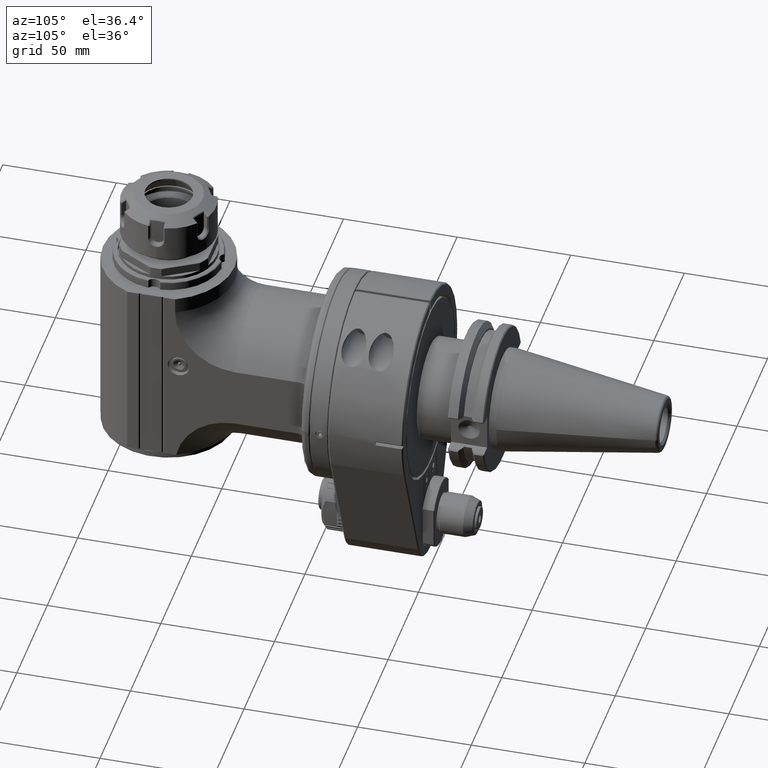
[diagram: clean part render]
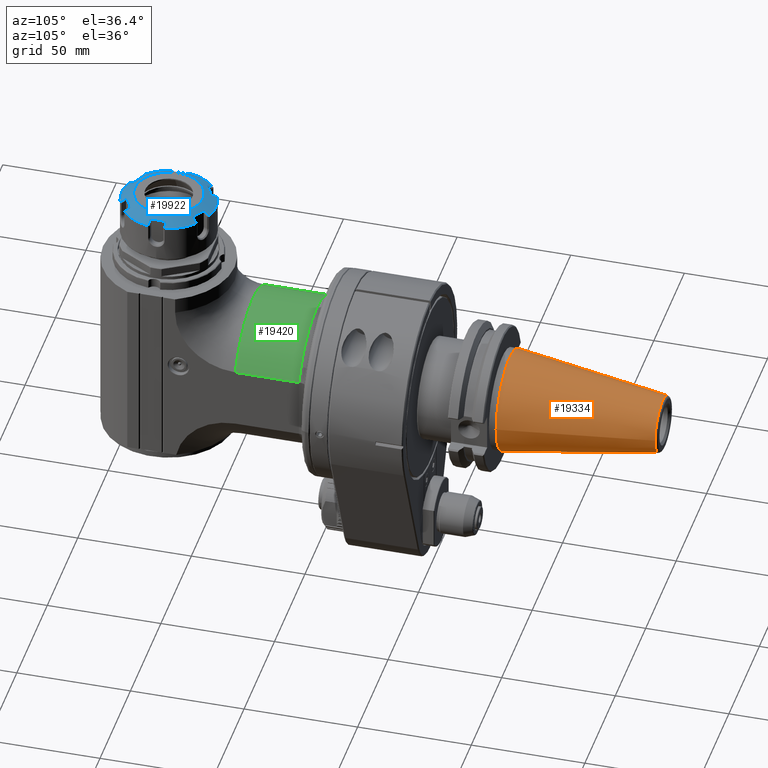
[diagram: same view with three faces highlighted in distinct colors, each labeled with its STEP entity id]
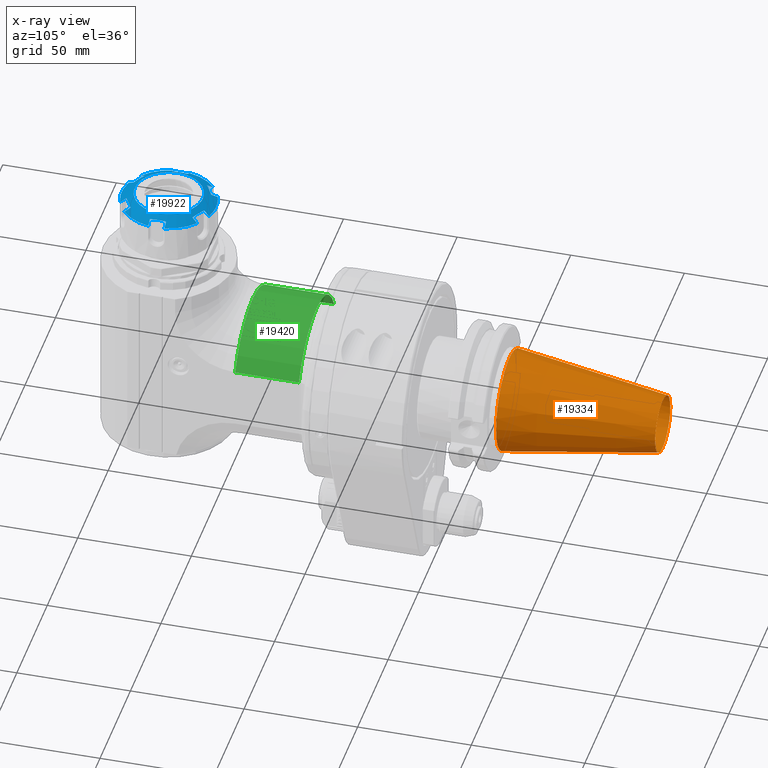
[diagram: x-ray of the same camera — body ghosted, the three highlighted faces saturated]
A machine part, auxiliary view with three faces highlighted in distinct colors.
The next image is the same camera in x-ray (body ghosted, the three faces saturated) — at least one of them is partly hidden behind the body in this view.
Their STEP definitions:

[orange] entity #19334 — the highlighted conical surface has half-angle 8.3 deg.
#633=CONICAL_SURFACE('',#20845,17.31065452764,0.144862327915529);
#1058=CIRCLE('',#20843,22.225);
#1059=CIRCLE('',#20844,22.225);
#1060=CIRCLE('',#20846,12.39630905528);
#1061=CIRCLE('',#20847,12.39630905528);
#1901=FACE_OUTER_BOUND('',#3013,.T.);
#3013=EDGE_LOOP('',(#14657,#14658,#14659,#14660,#14661,#14662));
#4398=LINE('',#30350,#6329);
#6329=VECTOR('',#23986,17.31065452764);
#8337=VERTEX_POINT('',#30343);
#8338=VERTEX_POINT('',#30344);
#8339=VERTEX_POINT('',#30349);
#8340=VERTEX_POINT('',#30351);
#10638=EDGE_CURVE('',#8337,#8338,#1058,.T.);
#10640=EDGE_CURVE('',#8338,#8337,#1059,.T.);
#10641=EDGE_CURVE('',#8337,#8339,#4398,.T.);
#10642=EDGE_CURVE('',#8339,#8340,#1060,.T.);
#10643=EDGE_CURVE('',#8340,#8339,#1061,.T.);
#14657=ORIENTED_EDGE('',*,*,#10638,.F.);
#14658=ORIENTED_EDGE('',*,*,#10641,.T.);
#14659=ORIENTED_EDGE('',*,*,#10642,.T.);
#14660=ORIENTED_EDGE('',*,*,#10643,.T.);
#14661=ORIENTED_EDGE('',*,*,#10641,.F.);
#14662=ORIENTED_EDGE('',*,*,#10640,.F.);
#19334=ADVANCED_FACE('',(#1901),#633,.T.);
#20843=AXIS2_PLACEMENT_3D('',#30345,#23979,#23980);
#20844=AXIS2_PLACEMENT_3D('',#30347,#23982,#23983);
#20845=AXIS2_PLACEMENT_3D('',#30348,#23984,#23985);
#20846=AXIS2_PLACEMENT_3D('',#30352,#23987,#23988);
#20847=AXIS2_PLACEMENT_3D('',#30353,#23989,#23990);
#23979=DIRECTION('center_axis',(0.,-1.,0.));
#23980=DIRECTION('ref_axis',(-1.,0.,0.));
#23982=DIRECTION('center_axis',(0.,-1.,0.));
#23983=DIRECTION('ref_axis',(-1.,0.,0.));
#23984=DIRECTION('center_axis',(0.,-1.,0.));
#23985=DIRECTION('ref_axis',(-1.,0.,0.));
#23986=DIRECTION('',(-0.144356201000973,0.989525789068969,-1.76785359492914E-17));
#23987=DIRECTION('center_axis',(0.,-1.,0.));
#23988=DIRECTION('ref_axis',(1.,0.,2.949518067144E-12));
#23989=DIRECTION('center_axis',(0.,-1.,0.));
#23990=DIRECTION('ref_axis',(1.,0.,2.949518067144E-12));
#30343=CARTESIAN_POINT('',(22.225,67.9999999999999,3.277788040989E-11));
#30344=CARTESIAN_POINT('',(-22.225,67.9999999999998,2.72177751110499E-15));
#30345=CARTESIAN_POINT('Origin',(0.,67.9999999999998,0.));
#30347=CARTESIAN_POINT('Origin',(0.,67.9999999999998,0.));
#30348=CARTESIAN_POINT('Origin',(0.,101.6866137206,0.));
#30349=CARTESIAN_POINT('',(12.3963090552815,135.3732274412,1.51811002057918E-15));
#30350=CARTESIAN_POINT('',(17.31065452764,101.6866137206,2.119943765842E-15));
#30351=CARTESIAN_POINT('',(12.39538385673,135.3732274412,0.1514504484024));
#30352=CARTESIAN_POINT('Origin',(0.,135.3732274412,0.));
#30353=CARTESIAN_POINT('Origin',(0.,135.3732274412,0.));

[blue] entity #19922 — the highlighted conical surface has half-angle 60 deg.
#255=B_SPLINE_CURVE_WITH_KNOTS('',3,(#35754,#35755,#35756,#35757,#35758,
#35759),.UNSPECIFIED.,.F.,.F.,(4,2,4),(-0.356094171080273,-0.176869459421675,
-5.31290702736191E-6),.UNSPECIFIED.);
#256=B_SPLINE_CURVE_WITH_KNOTS('',3,(#35761,#35762,#35763,#35764,#35765,
#35766),.UNSPECIFIED.,.F.,.F.,(4,2,4),(-0.316647697511671,-0.148429470722889,
-5.37230390903657E-6),.UNSPECIFIED.);
#257=B_SPLINE_CURVE_WITH_KNOTS('',3,(#35775,#35776,#35777,#35778,#35779,
#35780),.UNSPECIFIED.,.F.,.F.,(4,2,4),(-0.317244899239856,-0.168843971416712,
-9.99999998941598E-7),.UNSPECIFIED.);
#258=B_SPLINE_CURVE_WITH_KNOTS('',3,(#35782,#35783,#35784,#35785,#35786,
#35787,#35788,#35789,#35790,#35791),.UNSPECIFIED.,.F.,.F.,(4,2,2,2,4),(-0.711219354803699,
-0.531758426271188,-0.355736050795796,-0.178875761177066,-6.11325260646589E-6),
 .UNSPECIFIED.);
#259=B_SPLINE_CURVE_WITH_KNOTS('',3,(#35793,#35794,#35795,#35796,#35797,
#35798),.UNSPECIFIED.,.F.,.F.,(4,2,4),(-0.316654738510028,-0.148435519428061,
0.),.UNSPECIFIED.);
#260=B_SPLINE_CURVE_WITH_KNOTS('',3,(#35807,#35808,#35809,#35810,#35811,
#35812),.UNSPECIFIED.,.F.,.F.,(4,2,4),(-0.317252888772908,-0.168845107233457,
-9.9999999780831E-7),.UNSPECIFIED.);
#261=B_SPLINE_CURVE_WITH_KNOTS('',3,(#35814,#35815,#35816,#35817,#35818,
#35819,#35820,#35821,#35822,#35823),.UNSPECIFIED.,.F.,.F.,(4,2,2,2,4),(-0.712875855440529,
-0.533650208510968,-0.356448695513506,-0.179954559891806,-8.78392841981379E-6),
 .UNSPECIFIED.);
#262=B_SPLINE_CURVE_WITH_KNOTS('',3,(#35825,#35826,#35827,#35828,#35829,
#35830),.UNSPECIFIED.,.F.,.F.,(4,2,4),(-0.316651775577888,-0.148433405916079,
-3.99604902768155E-6),.UNSPECIFIED.);
#263=B_SPLINE_CURVE_WITH_KNOTS('',3,(#35835,#35836,#35837,#35838,#35839,
#35840),.UNSPECIFIED.,.F.,.F.,(4,2,4),(-0.317239954064391,-0.168844043264978,
-9.99999998363421E-7),.UNSPECIFIED.);
#264=B_SPLINE_CURVE_WITH_KNOTS('',3,(#35842,#35843,#35844,#35845,#35846,
#35847),.UNSPECIFIED.,.F.,.F.,(4,2,4),(-0.355997314137863,-0.178976379196128,
-3.95904516388192E-6),.UNSPECIFIED.);
#265=B_SPLINE_CURVE_WITH_KNOTS('',3,(#35849,#35850,#35851,#35852,#35853,
#35854),.UNSPECIFIED.,.F.,.F.,(4,2,4),(-0.356093934485116,-0.176869407079445,
-5.31290738716052E-6),.UNSPECIFIED.);
#266=B_SPLINE_CURVE_WITH_KNOTS('',3,(#35856,#35857,#35858,#35859,#35860,
#35861),.UNSPECIFIED.,.F.,.F.,(4,2,4),(-0.316650842028105,-0.148432432882979,
-8.10010698442937E-6),.UNSPECIFIED.);
#267=B_SPLINE_CURVE_WITH_KNOTS('',3,(#35870,#35871,#35872,#35873,#35874,
#35875),.UNSPECIFIED.,.F.,.F.,(4,2,4),(-0.317244900403148,-0.168843972057398,
-9.9999999880751E-7),.UNSPECIFIED.);
#268=B_SPLINE_CURVE_WITH_KNOTS('',3,(#35877,#35878,#35879,#35880,#35881,
#35882,#35883,#35884,#35885,#35886),.UNSPECIFIED.,.F.,.F.,(4,2,2,2,4),(-0.711219303918197,
-0.531758420424262,-0.355736045801681,-0.178875758678972,-6.11325418960966E-6),
 .UNSPECIFIED.);
#269=B_SPLINE_CURVE_WITH_KNOTS('',3,(#35888,#35889,#35890,#35891,#35892,
#35893),.UNSPECIFIED.,.F.,.F.,(4,2,4),(-0.316654842596217,-0.148435583277023,
0.),.UNSPECIFIED.);
#270=B_SPLINE_CURVE_WITH_KNOTS('',3,(#35902,#35903,#35904,#35905,#35906,
#35907),.UNSPECIFIED.,.F.,.F.,(4,2,4),(-0.317252888775133,-0.16884510723562,
-9.99999996698087E-7),.UNSPECIFIED.);
#271=B_SPLINE_CURVE_WITH_KNOTS('',3,(#35909,#35910,#35911,#35912,#35913,
#35914,#35915,#35916,#35917,#35918),.UNSPECIFIED.,.F.,.F.,(4,2,2,2,4),(-0.712875942110645,
-0.533650213577249,-0.356448711362655,-0.179954567956031,-8.78392751778537E-6),
 .UNSPECIFIED.);
#272=B_SPLINE_CURVE_WITH_KNOTS('',3,(#35920,#35921,#35922,#35923,#35924,
#35925),.UNSPECIFIED.,.F.,.F.,(4,2,4),(-0.316651579511482,-0.14843281352955,
-3.95495064665556E-6),.UNSPECIFIED.);
#273=B_SPLINE_CURVE_WITH_KNOTS('',3,(#35934,#35935,#35936,#35937,#35938,
#35939),.UNSPECIFIED.,.F.,.F.,(4,2,4),(-0.317239953162567,-0.168843575039838,
-9.99999997602981E-7),.UNSPECIFIED.);
#274=B_SPLINE_CURVE_WITH_KNOTS('',3,(#35940,#35941,#35942,#35943,#35944,
#35945),.UNSPECIFIED.,.F.,.F.,(4,2,4),(-0.355997314206201,-0.178976379266115,
-3.95904519139275E-6),.UNSPECIFIED.);
#560=(
BOUNDED_CURVE()
B_SPLINE_CURVE(2,(#35740,#35741,#35742),.UNSPECIFIED.,.F.,.F.)
B_SPLINE_CURVE_WITH_KNOTS((3,3),(5.70939579023265,5.71480726823977),
 .UNSPECIFIED.)
CURVE()
GEOMETRIC_REPRESENTATION_ITEM()
RATIONAL_B_SPLINE_CURVE((1.38705507660579,1.38617910397371,1.38530112309765))
REPRESENTATION_ITEM('')
);
#561=(
BOUNDED_CURVE()
B_SPLINE_CURVE(2,(#35767,#35768,#35769),.UNSPECIFIED.,.F.,.F.)
B_SPLINE_CURVE_WITH_KNOTS((3,3),(-5.71480726674702,-5.70939541038555),
 .UNSPECIFIED.)
CURVE()
GEOMETRIC_REPRESENTATION_ITEM()
RATIONAL_B_SPLINE_CURVE((1.38530112286717,1.38617916512902,1.38705519886607))
REPRESENTATION_ITEM('')
);
#562=(
BOUNDED_CURVE()
B_SPLINE_CURVE(2,(#35771,#35772,#35773),.UNSPECIFIED.,.F.,.F.)
B_SPLINE_CURVE_WITH_KNOTS((3,3),(-0.988548442382876,-0.983136929645306),
 .UNSPECIFIED.)
CURVE()
GEOMETRIC_REPRESENTATION_ITEM()
RATIONAL_B_SPLINE_CURVE((1.38705508655003,1.38617910830886,1.38530112179794))
REPRESENTATION_ITEM('')
);
#563=(
BOUNDED_CURVE()
B_SPLINE_CURVE(2,(#35799,#35800,#35801),.UNSPECIFIED.,.F.,.F.)
B_SPLINE_CURVE_WITH_KNOTS((3,3),(-5.71480726012796,-5.70939568915882),
 .UNSPECIFIED.)
CURVE()
GEOMETRIC_REPRESENTATION_ITEM()
RATIONAL_B_SPLINE_CURVE((1.38530112176252,1.38617911772118,1.38705510536688))
REPRESENTATION_ITEM('')
);
#564=(
BOUNDED_CURVE()
B_SPLINE_CURVE(2,(#35803,#35804,#35805),.UNSPECIFIED.,.F.,.F.)
B_SPLINE_CURVE_WITH_KNOTS((3,3),(-0.988548405824981,-0.983136927805971),
 .UNSPECIFIED.)
CURVE()
GEOMETRIC_REPRESENTATION_ITEM()
RATIONAL_B_SPLINE_CURVE((1.38705507452491,1.38617910189081,1.38530112101273))
REPRESENTATION_ITEM('')
);
#565=(
BOUNDED_CURVE()
B_SPLINE_CURVE(2,(#35831,#35832,#35833),.UNSPECIFIED.,.F.,.F.)
B_SPLINE_CURVE_WITH_KNOTS((3,3),(-5.71480726184638,-5.70939595832262),
 .UNSPECIFIED.)
CURVE()
GEOMETRIC_REPRESENTATION_ITEM()
RATIONAL_B_SPLINE_CURVE((1.38530112204975,1.38617907461693,1.38705501906965))
REPRESENTATION_ITEM('')
);
#566=(
BOUNDED_CURVE()
B_SPLINE_CURVE(2,(#35862,#35863,#35864),.UNSPECIFIED.,.F.,.F.)
B_SPLINE_CURVE_WITH_KNOTS((3,3),(-5.71480726674865,-5.70939589251838),
 .UNSPECIFIED.)
CURVE()
GEOMETRIC_REPRESENTATION_ITEM()
RATIONAL_B_SPLINE_CURVE((1.38530112286665,1.38617908690551,1.38705504277743))
REPRESENTATION_ITEM('')
);
#567=(
BOUNDED_CURVE()
B_SPLINE_CURVE(2,(#35866,#35867,#35868),.UNSPECIFIED.,.F.,.F.)
B_SPLINE_CURVE_WITH_KNOTS((3,3),(-0.988548442382876,-0.983136929646859),
 .UNSPECIFIED.)
CURVE()
GEOMETRIC_REPRESENTATION_ITEM()
RATIONAL_B_SPLINE_CURVE((1.38705508655003,1.38617910830911,1.38530112179844))
REPRESENTATION_ITEM('')
);
#568=(
BOUNDED_CURVE()
B_SPLINE_CURVE(2,(#35894,#35895,#35896),.UNSPECIFIED.,.F.,.F.)
B_SPLINE_CURVE_WITH_KNOTS((3,3),(-5.71480726012993,-5.70939578808571),
 .UNSPECIFIED.)
CURVE()
GEOMETRIC_REPRESENTATION_ITEM()
RATIONAL_B_SPLINE_CURVE((1.38530112176188,1.38617910167055,1.38705507333968))
REPRESENTATION_ITEM('')
);
#569=(
BOUNDED_CURVE()
B_SPLINE_CURVE(2,(#35898,#35899,#35900),.UNSPECIFIED.,.F.,.F.)
B_SPLINE_CURVE_WITH_KNOTS((3,3),(-0.988548405824981,-0.983136927807666),
 .UNSPECIFIED.)
CURVE()
GEOMETRIC_REPRESENTATION_ITEM()
RATIONAL_B_SPLINE_CURVE((1.38705507452491,1.38617910189108,1.38530112101328))
REPRESENTATION_ITEM('')
);
#570=(
BOUNDED_CURVE()
B_SPLINE_CURVE(2,(#35926,#35927,#35928),.UNSPECIFIED.,.F.,.F.)
B_SPLINE_CURVE_WITH_KNOTS((3,3),(-5.71480726184823,-5.70939578980836),
 .UNSPECIFIED.)
CURVE()
GEOMETRIC_REPRESENTATION_ITEM()
RATIONAL_B_SPLINE_CURVE((1.38530112204914,1.38617910195709,1.3870550736255))
REPRESENTATION_ITEM('')
);
#571=(
BOUNDED_CURVE()
B_SPLINE_CURVE(2,(#35930,#35931,#35932),.UNSPECIFIED.,.F.,.F.)
B_SPLINE_CURVE_WITH_KNOTS((3,3),(5.70939579023265,5.71480726823744),
 .UNSPECIFIED.)
CURVE()
GEOMETRIC_REPRESENTATION_ITEM()
RATIONAL_B_SPLINE_CURVE((1.38705507660579,1.38617910397408,1.38530112309841))
REPRESENTATION_ITEM('')
);
#692=CONICAL_SURFACE('',#21686,17.925,1.0471975511966);
#1299=CIRCLE('',#21679,20.85);
#1300=CIRCLE('',#21680,20.85);
#1301=CIRCLE('',#21681,20.85);
#1302=CIRCLE('',#21682,20.85);
#1303=CIRCLE('',#21683,20.85);
#1304=CIRCLE('',#21684,20.85);
#1305=CIRCLE('',#21687,15.);
#2489=FACE_OUTER_BOUND('',#3662,.T.);
#3662=EDGE_LOOP('',(#17823,#17824,#17825,#17826,#17827,#17828,#17829,#17830,
#17831,#17832,#17833,#17834,#17835,#17836,#17837,#17838,#17839,#17840,#17841,
#17842,#17843,#17844,#17845,#17846,#17847,#17848,#17849,#17850,#17851,#17852,
#17853,#17854,#17855,#17856,#17857,#17858,#17859,#17860,#17861,#17862,#17863));
#5607=LINE('',#35947,#7538);
#7538=VECTOR('',#26877,17.925);
#9383=VERTEX_POINT('',#35407);
#9384=VERTEX_POINT('',#35409);
#9387=VERTEX_POINT('',#35440);
#9388=VERTEX_POINT('',#35442);
#9391=VERTEX_POINT('',#35473);
#9392=VERTEX_POINT('',#35475);
#9396=VERTEX_POINT('',#35510);
#9397=VERTEX_POINT('',#35512);
#9400=VERTEX_POINT('',#35543);
#9401=VERTEX_POINT('',#35545);
#9404=VERTEX_POINT('',#35576);
#9405=VERTEX_POINT('',#35578);
#9410=VERTEX_POINT('',#35739);
#9412=VERTEX_POINT('',#35752);
#9413=VERTEX_POINT('',#35753);
#9414=VERTEX_POINT('',#35760);
#9415=VERTEX_POINT('',#35770);
#9416=VERTEX_POINT('',#35774);
#9417=VERTEX_POINT('',#35781);
#9418=VERTEX_POINT('',#35792);
#9419=VERTEX_POINT('',#35802);
#9420=VERTEX_POINT('',#35806);
#9421=VERTEX_POINT('',#35813);
#9422=VERTEX_POINT('',#35824);
#9423=VERTEX_POINT('',#35834);
#9424=VERTEX_POINT('',#35841);
#9425=VERTEX_POINT('',#35848);
#9426=VERTEX_POINT('',#35855);
#9427=VERTEX_POINT('',#35865);
#9428=VERTEX_POINT('',#35869);
#9429=VERTEX_POINT('',#35876);
#9430=VERTEX_POINT('',#35887);
#9431=VERTEX_POINT('',#35897);
#9432=VERTEX_POINT('',#35901);
#9433=VERTEX_POINT('',#35908);
#9434=VERTEX_POINT('',#35919);
#9435=VERTEX_POINT('',#35929);
#9436=VERTEX_POINT('',#35933);
#9437=VERTEX_POINT('',#35946);
#12206=EDGE_CURVE('',#9383,#9384,#1299,.T.);
#12210=EDGE_CURVE('',#9387,#9388,#1300,.T.);
#12214=EDGE_CURVE('',#9391,#9392,#1301,.T.);
#12220=EDGE_CURVE('',#9396,#9397,#1302,.T.);
#12224=EDGE_CURVE('',#9400,#9401,#1303,.T.);
#12228=EDGE_CURVE('',#9404,#9405,#1304,.T.);
#12236=EDGE_CURVE('',#9410,#9396,#560,.T.);
#12239=EDGE_CURVE('',#9412,#9413,#255,.T.);
#12240=EDGE_CURVE('',#9414,#9412,#256,.T.);
#12241=EDGE_CURVE('',#9405,#9414,#561,.T.);
#12242=EDGE_CURVE('',#9415,#9404,#562,.T.);
#12243=EDGE_CURVE('',#9416,#9415,#257,.T.);
#12244=EDGE_CURVE('',#9417,#9416,#258,.T.);
#12245=EDGE_CURVE('',#9418,#9417,#259,.T.);
#12246=EDGE_CURVE('',#9401,#9418,#563,.T.);
#12247=EDGE_CURVE('',#9419,#9400,#564,.T.);
#12248=EDGE_CURVE('',#9420,#9419,#260,.T.);
#12249=EDGE_CURVE('',#9421,#9420,#261,.T.);
#12250=EDGE_CURVE('',#9422,#9421,#262,.T.);
#12251=EDGE_CURVE('',#9397,#9422,#565,.T.);
#12252=EDGE_CURVE('',#9423,#9410,#263,.T.);
#12253=EDGE_CURVE('',#9424,#9423,#264,.T.);
#12254=EDGE_CURVE('',#9425,#9424,#265,.T.);
#12255=EDGE_CURVE('',#9426,#9425,#266,.T.);
#12256=EDGE_CURVE('',#9392,#9426,#566,.T.);
#12257=EDGE_CURVE('',#9427,#9391,#567,.T.);
#12258=EDGE_CURVE('',#9428,#9427,#267,.T.);
#12259=EDGE_CURVE('',#9429,#9428,#268,.T.);
#12260=EDGE_CURVE('',#9430,#9429,#269,.T.);
#12261=EDGE_CURVE('',#9388,#9430,#568,.T.);
#12262=EDGE_CURVE('',#9431,#9387,#569,.T.);
#12263=EDGE_CURVE('',#9432,#9431,#270,.T.);
#12264=EDGE_CURVE('',#9433,#9432,#271,.T.);
#12265=EDGE_CURVE('',#9434,#9433,#272,.T.);
#12266=EDGE_CURVE('',#9384,#9434,#570,.T.);
#12267=EDGE_CURVE('',#9435,#9383,#571,.T.);
#12268=EDGE_CURVE('',#9436,#9435,#273,.T.);
#12269=EDGE_CURVE('',#9413,#9436,#274,.T.);
#12270=EDGE_CURVE('',#9413,#9437,#5607,.T.);
#12271=EDGE_CURVE('',#9437,#9437,#1305,.T.);
#17823=ORIENTED_EDGE('',*,*,#12239,.F.);
#17824=ORIENTED_EDGE('',*,*,#12240,.F.);
#17825=ORIENTED_EDGE('',*,*,#12241,.F.);
#17826=ORIENTED_EDGE('',*,*,#12228,.F.);
#17827=ORIENTED_EDGE('',*,*,#12242,.F.);
#17828=ORIENTED_EDGE('',*,*,#12243,.F.);
#17829=ORIENTED_EDGE('',*,*,#12244,.F.);
#17830=ORIENTED_EDGE('',*,*,#12245,.F.);
#17831=ORIENTED_EDGE('',*,*,#12246,.F.);
#17832=ORIENTED_EDGE('',*,*,#12224,.F.);
#17833=ORIENTED_EDGE('',*,*,#12247,.F.);
#17834=ORIENTED_EDGE('',*,*,#12248,.F.);
#17835=ORIENTED_EDGE('',*,*,#12249,.F.);
#17836=ORIENTED_EDGE('',*,*,#12250,.F.);
#17837=ORIENTED_EDGE('',*,*,#12251,.F.);
#17838=ORIENTED_EDGE('',*,*,#12220,.F.);
#17839=ORIENTED_EDGE('',*,*,#12236,.F.);
#17840=ORIENTED_EDGE('',*,*,#12252,.F.);
#17841=ORIENTED_EDGE('',*,*,#12253,.F.);
#17842=ORIENTED_EDGE('',*,*,#12254,.F.);
#17843=ORIENTED_EDGE('',*,*,#12255,.F.);
#17844=ORIENTED_EDGE('',*,*,#12256,.F.);
#17845=ORIENTED_EDGE('',*,*,#12214,.F.);
#17846=ORIENTED_EDGE('',*,*,#12257,.F.);
#17847=ORIENTED_EDGE('',*,*,#12258,.F.);
#17848=ORIENTED_EDGE('',*,*,#12259,.F.);
#17849=ORIENTED_EDGE('',*,*,#12260,.F.);
#17850=ORIENTED_EDGE('',*,*,#12261,.F.);
#17851=ORIENTED_EDGE('',*,*,#12210,.F.);
#17852=ORIENTED_EDGE('',*,*,#12262,.F.);
#17853=ORIENTED_EDGE('',*,*,#12263,.F.);
#17854=ORIENTED_EDGE('',*,*,#12264,.F.);
#17855=ORIENTED_EDGE('',*,*,#12265,.F.);
#17856=ORIENTED_EDGE('',*,*,#12266,.F.);
#17857=ORIENTED_EDGE('',*,*,#12206,.F.);
#17858=ORIENTED_EDGE('',*,*,#12267,.F.);
#17859=ORIENTED_EDGE('',*,*,#12268,.F.);
#17860=ORIENTED_EDGE('',*,*,#12269,.F.);
#17861=ORIENTED_EDGE('',*,*,#12270,.T.);
#17862=ORIENTED_EDGE('',*,*,#12271,.T.);
#17863=ORIENTED_EDGE('',*,*,#12270,.F.);
#19922=ADVANCED_FACE('',(#2489),#692,.T.);
#21679=AXIS2_PLACEMENT_3D('',#35410,#26845,#26846);
#21680=AXIS2_PLACEMENT_3D('',#35443,#26849,#26850);
#21681=AXIS2_PLACEMENT_3D('',#35476,#26853,#26854);
#21682=AXIS2_PLACEMENT_3D('',#35513,#26858,#26859);
#21683=AXIS2_PLACEMENT_3D('',#35546,#26862,#26863);
#21684=AXIS2_PLACEMENT_3D('',#35579,#26866,#26867);
#21686=AXIS2_PLACEMENT_3D('',#35751,#26875,#26876);
#21687=AXIS2_PLACEMENT_3D('',#35948,#26878,#26879);
#26845=DIRECTION('center_axis',(0.,0.,-1.));
#26846=DIRECTION('ref_axis',(-0.985098470869324,0.171991286671504,0.));
#26849=DIRECTION('center_axis',(0.,0.,-1.));
#26850=DIRECTION('ref_axis',(-0.343600087034699,0.939116063215696,0.));
#26853=DIRECTION('center_axis',(0.,0.,-1.));
#26854=DIRECTION('ref_axis',(0.641498227602102,0.767124516609502,0.));
#26858=DIRECTION('center_axis',(0.,0.,-1.));
#26859=DIRECTION('ref_axis',(0.985098470869324,-0.171991286671504,0.));
#26862=DIRECTION('center_axis',(0.,0.,-1.));
#26863=DIRECTION('ref_axis',(0.343600087034699,-0.939116063215696,0.));
#26866=DIRECTION('center_axis',(0.,0.,-1.));
#26867=DIRECTION('ref_axis',(-0.641498227602102,-0.767124516609502,0.));
#26875=DIRECTION('center_axis',(0.,0.,-1.));
#26876=DIRECTION('ref_axis',(1.,0.,0.));
#26877=DIRECTION('',(0.866025403784439,-1.06057523872491E-16,0.5));
#26878=DIRECTION('center_axis',(0.,0.,-1.));
#26879=DIRECTION('ref_axis',(1.,0.,0.));
#35407=CARTESIAN_POINT('',(-20.5393071756726,3.58599508709428,77.1225009245324));
#35409=CARTESIAN_POINT('',(-13.3752164309151,15.9945642467616,77.1225009246552));
#35410=CARTESIAN_POINT('Origin',(0.,0.,77.12250092524));
#35440=CARTESIAN_POINT('',(-7.1640907447631,19.5805593336015,77.1225009247122));
#35442=CARTESIAN_POINT('',(7.16409074466026,19.580559333709,77.1225009246214));
#35443=CARTESIAN_POINT('Origin',(0.,0.,77.12250092524));
#35473=CARTESIAN_POINT('',(13.3752164307505,15.9945642468032,77.1225009247572));
#35475=CARTESIAN_POINT('',(20.5393071755818,3.58599508678766,77.1225009247295));
#35476=CARTESIAN_POINT('Origin',(0.,0.,77.12250092524));
#35510=CARTESIAN_POINT('',(20.5393071756795,-3.58599508711807,77.1225009245175));
#35512=CARTESIAN_POINT('',(13.3752164308958,-15.9945642467663,77.1225009246672));
#35513=CARTESIAN_POINT('Origin',(0.,0.,77.12250092524));
#35543=CARTESIAN_POINT('',(7.16409074475059,-19.5805593336146,77.1225009247012));
#35545=CARTESIAN_POINT('',(-7.16409074467475,-19.5805593336938,77.1225009246341));
#35546=CARTESIAN_POINT('Origin',(0.,0.,77.12250092524));
#35576=CARTESIAN_POINT('',(-13.3752164307666,-15.9945642467993,77.1225009247472));
#35578=CARTESIAN_POINT('',(-20.5393071755769,-3.58599508677099,77.12250092474));
#35579=CARTESIAN_POINT('Origin',(0.,0.,77.12250092524));
#35739=CARTESIAN_POINT('',(20.50286051025,-3.542633811847,77.14751713865));
#35740=CARTESIAN_POINT('Ctrl Pts',(20.5028605105807,-3.54263381223825,77.1475171384257));
#35741=CARTESIAN_POINT('Ctrl Pts',(20.5210648882668,-3.56429189835987,77.1350312664619));
#35742=CARTESIAN_POINT('Ctrl Pts',(20.5393071760984,-3.58599508688533,77.122500924724));
#35751=CARTESIAN_POINT('Origin',(0.,0.,78.81125046262));
#35752=CARTESIAN_POINT('',(-17.7451938458804,-3.54898239237752,78.7121731838425));
#35753=CARTESIAN_POINT('',(-17.7499810116659,-9.62740116761358E-7,78.9122850366411));
#35754=CARTESIAN_POINT('Ctrl Pts',(-17.7451938478713,-3.54898239216507,
78.7121731818777));
#35755=CARTESIAN_POINT('Ctrl Pts',(-17.7471096181994,-2.95540225091081,
78.7782972794475));
#35756=CARTESIAN_POINT('Ctrl Pts',(-17.7479473598379,-2.36182387562171,
78.8288208158488));
#35757=CARTESIAN_POINT('Ctrl Pts',(-17.7491613421525,-1.17682834385377,
78.8958403919681));
#35758=CARTESIAN_POINT('Ctrl Pts',(-17.7495430004388,-0.589547774052213,
78.9125505902645));
#35759=CARTESIAN_POINT('Ctrl Pts',(-17.7499613066714,-9.53442250983816E-7,
78.9123090993319));
#35760=CARTESIAN_POINT('',(-20.50285796603,-3.54263078494,77.14751888366));
#35761=CARTESIAN_POINT('Ctrl Pts',(-20.5028579660308,-3.54263078493489,
77.1475188836615));
#35762=CARTESIAN_POINT('Ctrl Pts',(-20.0145284943395,-3.54354836510948,
77.4252491152997));
#35763=CARTESIAN_POINT('Ctrl Pts',(-19.5259243447406,-3.54461796799672,
77.7028278185986));
#35764=CARTESIAN_POINT('Ctrl Pts',(-18.6071747644924,-3.54679390316363,
78.2240706285743));
#35765=CARTESIAN_POINT('Ctrl Pts',(-18.1757858237369,-3.54788385307832,
78.4685227134157));
#35766=CARTESIAN_POINT('Ctrl Pts',(-17.7451938455755,-3.54898239099463,
78.71217318331));
#35767=CARTESIAN_POINT('Ctrl Pts',(-20.5393071758667,-3.58599508661025,
77.1225009248831));
#35768=CARTESIAN_POINT('Ctrl Pts',(-20.5210636133939,-3.56429038162035,
77.1350321421519));
#35769=CARTESIAN_POINT('Ctrl Pts',(-20.5028579663597,-3.54263078533177,
77.1475188834354));
#35770=CARTESIAN_POINT('',(-13.31944077521,-15.98468108289,77.14751729878));
#35771=CARTESIAN_POINT('Ctrl Pts',(-13.3194407752091,-15.9846810828951,
77.1475172987801));
#35772=CARTESIAN_POINT('Ctrl Pts',(-13.3472995951687,-15.9896175249711,
77.1350313470063));
#35773=CARTESIAN_POINT('Ctrl Pts',(-13.375216430772,-15.994564247126,77.1225009248882));
#35774=CARTESIAN_POINT('',(-11.9460829548879,-13.5932608306524,78.7121977920034));
#35775=CARTESIAN_POINT('Ctrl Pts',(-11.9460829542271,-13.5932608308614,
78.7121977917425));
#35776=CARTESIAN_POINT('Ctrl Pts',(-12.1599914919096,-13.9659526893204,
78.4690435756911));
#35777=CARTESIAN_POINT('Ctrl Pts',(-12.3743035698872,-14.3393263240657,
78.2250918599033));
#35778=CARTESIAN_POINT('Ctrl Pts',(-12.831800010185,-15.136083627124,77.7038454138113));
#35779=CARTESIAN_POINT('Ctrl Pts',(-13.0756252658616,-15.5605434467513,
77.4257550643465));
#35780=CARTESIAN_POINT('Ctrl Pts',(-13.3194407752108,-15.9846810828905,
77.1475172987815));
#35781=CARTESIAN_POINT('',(-5.79903360892795,-17.1421814662343,78.7122370614224));
#35782=CARTESIAN_POINT('Ctrl Pts',(-5.79903360892795,-17.1421814662343,
78.7122370614224));
#35783=CARTESIAN_POINT('Ctrl Pts',(-6.31587080470287,-16.8455862522015,
78.7788249034673));
#35784=CARTESIAN_POINT('Ctrl Pts',(-6.83193149719104,-16.5491701763627,
78.8291259852667));
#35785=CARTESIAN_POINT('Ctrl Pts',(-7.85785359482166,-15.9587671938847,
78.8956248552879));
#35786=CARTESIAN_POINT('Ctrl Pts',(-8.36540140137225,-15.6661549357771,
78.9122713922466));
#35787=CARTESIAN_POINT('Ctrl Pts',(-9.38504585986434,-15.0774911598639,
78.9123009447612));
#35788=CARTESIAN_POINT('Ctrl Pts',(-9.89515498007181,-14.7825242610376,
78.8955354660619));
#35789=CARTESIAN_POINT('Ctrl Pts',(-10.9205265892873,-14.1885804461596,
78.8287151601237));
#35790=CARTESIAN_POINT('Ctrl Pts',(-11.4337112439664,-13.8908936227462,
78.7783994128411));
#35791=CARTESIAN_POINT('Ctrl Pts',(-11.9460829552847,-13.5932608315496,
78.7121977910409));
#35792=CARTESIAN_POINT('',(-7.183419709326,-19.52731404468,77.14751756747));
#35793=CARTESIAN_POINT('Ctrl Pts',(-7.1834197093251,-19.527314044681,77.1475175674707));
#35794=CARTESIAN_POINT('Ctrl Pts',(-6.93846024029266,-19.1048655364672,
77.4252486625773));
#35795=CARTESIAN_POINT('Ctrl Pts',(-6.69322746910158,-18.6822477902758,
77.7028330778386));
#35796=CARTESIAN_POINT('Ctrl Pts',(-6.23195266727088,-17.8876459338628,
78.2240948519228));
#35797=CARTESIAN_POINT('Ctrl Pts',(-6.01529878283673,-17.5145693379645,
78.4685649995775));
#35798=CARTESIAN_POINT('Ctrl Pts',(-5.79903598064951,-17.1421873262185,
78.7122334177771));
#35799=CARTESIAN_POINT('Ctrl Pts',(-7.164090745019,-19.5805593339006,77.1225009248074));
#35800=CARTESIAN_POINT('Ctrl Pts',(-7.17376527980699,-19.5539089974053,
77.1350314816765));
#35801=CARTESIAN_POINT('Ctrl Pts',(-7.18341970915044,-19.527314045161,77.1475175672454));
#35802=CARTESIAN_POINT('',(7.183419377758,-19.52731495805,77.14751713865));
#35803=CARTESIAN_POINT('Ctrl Pts',(7.18341937775659,-19.5273149580504,77.147517138652));
#35804=CARTESIAN_POINT('Ctrl Pts',(7.17376511378425,-19.5539094547487,77.1350312666409));
#35805=CARTESIAN_POINT('Ctrl Pts',(7.16409074505696,-19.5805593337983,77.1225009248553));
#35806=CARTESIAN_POINT('',(5.79903316968922,-17.1421818823461,78.712236914785));
#35807=CARTESIAN_POINT('Ctrl Pts',(5.79903316929095,-17.1421818827104,78.7122369149883));
#35808=CARTESIAN_POINT('Ctrl Pts',(6.01485016708173,-17.513796499166,78.4690706699928));
#35809=CARTESIAN_POINT('Ctrl Pts',(6.23105530853857,-17.8861005846757,78.2251074748276));
#35810=CARTESIAN_POINT('Ctrl Pts',(6.69233228037157,-18.6807056843728,77.7038460395427));
#35811=CARTESIAN_POINT('Ctrl Pts',(6.93801071763813,-19.1040913153559,77.4257577754389));
#35812=CARTESIAN_POINT('Ctrl Pts',(7.18341937776226,-19.5273149580487,77.1475171386518));
#35813=CARTESIAN_POINT('',(11.946081811839,-13.5932613393863,78.7121980070608));
#35814=CARTESIAN_POINT('Ctrl Pts',(11.9460818122715,-13.5932613403642,78.7121980060117));
#35815=CARTESIAN_POINT('Ctrl Pts',(11.4338751534421,-13.8907981320857,78.778378332655));
#35816=CARTESIAN_POINT('Ctrl Pts',(10.9208611648624,-14.1883864350853,78.8286822781355));
#35817=CARTESIAN_POINT('Ctrl Pts',(9.89586190338636,-14.7821150044679,78.8955003312681));
#35818=CARTESIAN_POINT('Ctrl Pts',(9.38595423895099,-15.0769657567491,78.9122768526296));
#35819=CARTESIAN_POINT('Ctrl Pts',(8.36633004701307,-15.6656196827656,78.9122954362479));
#35820=CARTESIAN_POINT('Ctrl Pts',(7.85859816501422,-15.9583388881175,78.8956607383884));
#35821=CARTESIAN_POINT('Ctrl Pts',(6.83230432489422,-16.5489558284663,78.8291625504094));
#35822=CARTESIAN_POINT('Ctrl Pts',(6.31605679224758,-16.8454795735006,78.7788488467375));
#35823=CARTESIAN_POINT('Ctrl Pts',(5.79903316923849,-17.142181881729,78.7122369155347));
#35824=CARTESIAN_POINT('',(13.31944292758,-15.98468146428,77.14751633412));
#35825=CARTESIAN_POINT('Ctrl Pts',(13.3194429275796,-15.9846814642793,77.1475163341185));
#35826=CARTESIAN_POINT('Ctrl Pts',(13.0760721615263,-15.5613185789152,77.4252460834864));
#35827=CARTESIAN_POINT('Ctrl Pts',(12.8326916131967,-15.1376345504853,77.7028290400939));
#35828=CARTESIAN_POINT('Ctrl Pts',(12.3751926639186,-14.3408760157175,78.2240794918618));
#35829=CARTESIAN_POINT('Ctrl Pts',(12.1604343014652,-13.9667258178223,78.4685395176841));
#35830=CARTESIAN_POINT('Ctrl Pts',(11.9460818111188,-13.593261339614,78.7121980067763));
#35831=CARTESIAN_POINT('Ctrl Pts',(13.3752164309024,-15.9945642471459,77.1225009248311));
#35832=CARTESIAN_POINT('Ctrl Pts',(13.3473006739101,-15.9896177161155,77.1350308628165));
#35833=CARTESIAN_POINT('Ctrl Pts',(13.3194429280826,-15.9846814643702,77.1475163338923));
#35834=CARTESIAN_POINT('',(17.7451939535775,-3.54898061126504,78.7121733245411));
#35835=CARTESIAN_POINT('Ctrl Pts',(17.7451939532719,-3.54898060987906,78.7121733240074));
#35836=CARTESIAN_POINT('Ctrl Pts',(18.1748956932009,-3.54788500640061,78.4690265155062));
#35837=CARTESIAN_POINT('Ctrl Pts',(18.605389531135,-3.54679799618786,78.2250822919023));
#35838=CARTESIAN_POINT('Ctrl Pts',(19.5241383951995,-3.54462306308674,77.7038423060303));
#35839=CARTESIAN_POINT('Ctrl Pts',(20.0136370428787,-3.5435521189489,77.4257559049499));
#35840=CARTESIAN_POINT('Ctrl Pts',(20.502860510251,-3.54263381184732,77.1475171386517));
#35841=CARTESIAN_POINT('',(17.7499819178795,9.78058033583318E-7,78.9122845134385));
#35842=CARTESIAN_POINT('Ctrl Pts',(17.7499631190985,9.84412467577171E-7,
78.9123080529266));
#35843=CARTESIAN_POINT('Ctrl Pts',(17.7495417424216,-0.590226988287252,
78.9125513537634));
#35844=CARTESIAN_POINT('Ctrl Pts',(17.7491583651974,-1.17818095535438,78.8958030995541));
#35845=CARTESIAN_POINT('Ctrl Pts',(17.7479425360871,-2.36317233928176,78.8287076808452));
#35846=CARTESIAN_POINT('Ctrl Pts',(17.7471054889206,-2.95607667387482,78.7782232221873));
#35847=CARTESIAN_POINT('Ctrl Pts',(17.7451939555729,-3.5489806110521,78.7121733225719));
#35848=CARTESIAN_POINT('',(17.7451938546138,3.54897990411664,78.7121734601193));
#35849=CARTESIAN_POINT('Ctrl Pts',(17.7451938554159,3.54897990403105,78.7121734593277));
#35850=CARTESIAN_POINT('Ctrl Pts',(17.7471096203669,2.95540055812449,78.7782974245243));
#35851=CARTESIAN_POINT('Ctrl Pts',(17.7479473612036,2.36182274226192,78.8288208897896));
#35852=CARTESIAN_POINT('Ctrl Pts',(17.74916134254,1.17682799656775,78.8958404017633));
#35853=CARTESIAN_POINT('Ctrl Pts',(17.7495430007075,0.5895475992428,78.9125505901158));
#35854=CARTESIAN_POINT('Ctrl Pts',(17.749961306662,9.53107864853919E-7,
78.9123090993373));
#35855=CARTESIAN_POINT('',(20.5028612078,3.542634641734,77.14751666022));
#35856=CARTESIAN_POINT('Ctrl Pts',(20.5028612078009,3.54263464173646,77.1475166602216));
#35857=CARTESIAN_POINT('Ctrl Pts',(20.0145311735859,3.54355100553462,77.425247323887));
#35858=CARTESIAN_POINT('Ctrl Pts',(19.5259267525153,3.54461944029581,77.7028262963631));
#35859=CARTESIAN_POINT('Ctrl Pts',(18.6071758878021,3.54679327314602,78.2240700575665));
#35860=CARTESIAN_POINT('Ctrl Pts',(18.1757865020772,3.54788227394665,78.4685225015197));
#35861=CARTESIAN_POINT('Ctrl Pts',(17.745193854491,3.54897990355949,78.7121734599048));
#35862=CARTESIAN_POINT('Ctrl Pts',(20.5393071758777,3.58599508662331,77.1225009248755));
#35863=CARTESIAN_POINT('Ctrl Pts',(20.521065237657,3.5642923140364,77.135031026471));
#35864=CARTESIAN_POINT('Ctrl Pts',(20.50286120813,3.54263464212611,77.1475166599961));
#35865=CARTESIAN_POINT('',(13.31944077521,15.98468108289,77.14751729878));
#35866=CARTESIAN_POINT('Ctrl Pts',(13.3194407752091,15.9846810828951,77.1475172987801));
#35867=CARTESIAN_POINT('Ctrl Pts',(13.3472995951607,15.9896175249697,77.1350313470098));
#35868=CARTESIAN_POINT('Ctrl Pts',(13.375216430756,15.9945642471231,77.1225009248954));
#35869=CARTESIAN_POINT('',(11.9460829548784,13.5932608306513,78.7121977920075));
#35870=CARTESIAN_POINT('Ctrl Pts',(11.9460829542177,13.5932608308603,78.7121977917465));
#35871=CARTESIAN_POINT('Ctrl Pts',(12.1599914920709,13.9659526896018,78.4690435755076));
#35872=CARTESIAN_POINT('Ctrl Pts',(12.374303570099,14.3393263244234,78.2250918596669));
#35873=CARTESIAN_POINT('Ctrl Pts',(12.8318000100248,15.1360836268236,77.7038454140032));
#35874=CARTESIAN_POINT('Ctrl Pts',(13.0756252649441,15.5605434451371,77.4257550654016));
#35875=CARTESIAN_POINT('Ctrl Pts',(13.3194407752113,15.9846810828902,77.1475172987815));
#35876=CARTESIAN_POINT('',(5.7990340477137,17.1421812144297,78.7122371179545));
#35877=CARTESIAN_POINT('Ctrl Pts',(5.7990340477137,17.1421812144297,78.7122371179545));
#35878=CARTESIAN_POINT('Ctrl Pts',(6.31587111334897,16.8455860749086,78.7788249340685));
#35879=CARTESIAN_POINT('Ctrl Pts',(6.8319316769644,16.5491700729425,78.8291259980011));
#35880=CARTESIAN_POINT('Ctrl Pts',(7.85785364218271,15.9587671665987,78.8956248572939));
#35881=CARTESIAN_POINT('Ctrl Pts',(8.36540144632827,15.6661549098507,78.9122713931736));
#35882=CARTESIAN_POINT('Ctrl Pts',(9.38504589535363,15.0774911393535,78.9123009438291));
#35883=CARTESIAN_POINT('Ctrl Pts',(9.89515500846291,14.7825242446018,78.8955354646719));
#35884=CARTESIAN_POINT('Ctrl Pts',(10.9205266034558,14.1885804379359,78.8287151587383));
#35885=CARTESIAN_POINT('Ctrl Pts',(11.4337112511218,13.8908936185947,78.7783994119142));
#35886=CARTESIAN_POINT('Ctrl Pts',(11.9460829552752,13.5932608315485,78.712197791045));
#35887=CARTESIAN_POINT('',(7.183419356571,19.52731501641,77.14751711125));
#35888=CARTESIAN_POINT('Ctrl Pts',(7.18341935657489,19.5273150164093,77.1475171112523));
#35889=CARTESIAN_POINT('Ctrl Pts',(6.93846004566734,19.1048662779541,77.4252482980421));
#35890=CARTESIAN_POINT('Ctrl Pts',(6.69322745643965,18.6822483655862,77.7028327670749));
#35891=CARTESIAN_POINT('Ctrl Pts',(6.23195287050094,17.8876460225274,78.2240947645808));
#35892=CARTESIAN_POINT('Ctrl Pts',(6.01529909080008,17.5145692219453,78.4685650047576));
#35893=CARTESIAN_POINT('Ctrl Pts',(5.79903635948395,17.1421869659343,78.7122335447289));
#35894=CARTESIAN_POINT('Ctrl Pts',(7.16409074501198,19.5805593339199,77.1225009247983));
#35895=CARTESIAN_POINT('Ctrl Pts',(7.17376510305897,19.5539094842912,77.1350312527507));
#35896=CARTESIAN_POINT('Ctrl Pts',(7.18341935639537,19.5273150168916,77.1475171110268));
#35897=CARTESIAN_POINT('',(-7.183419377758,19.52731495805,77.14751713865));
#35898=CARTESIAN_POINT('Ctrl Pts',(-7.18341937775659,19.5273149580504,77.147517138652));
#35899=CARTESIAN_POINT('Ctrl Pts',(-7.17376511378727,19.5539094547404,77.1350312666448));
#35900=CARTESIAN_POINT('Ctrl Pts',(-7.16409074506302,19.5805593337816,77.1225009248632));
#35901=CARTESIAN_POINT('',(-5.79903316969542,17.1421818823568,78.712236914778));
#35902=CARTESIAN_POINT('Ctrl Pts',(-5.79903316929716,17.1421818827211,78.7122369149813));
#35903=CARTESIAN_POINT('Ctrl Pts',(-6.01485016708835,17.5137964991774,78.4690706699853));
#35904=CARTESIAN_POINT('Ctrl Pts',(-6.23105530854264,17.8861005846827,78.225107474823));
#35905=CARTESIAN_POINT('Ctrl Pts',(-6.6923322803698,18.6807056843698,77.7038460395447));
#35906=CARTESIAN_POINT('Ctrl Pts',(-6.93801071763452,19.1040913153497,77.425757775443));
#35907=CARTESIAN_POINT('Ctrl Pts',(-7.18341937776226,19.5273149580487,77.1475171386518));
#35908=CARTESIAN_POINT('',(-11.9460825567898,13.5932609066628,78.7121979107985));
#35909=CARTESIAN_POINT('Ctrl Pts',(-11.9460825572182,13.5932609076312,78.7121979097596));
#35910=CARTESIAN_POINT('Ctrl Pts',(-11.4338756656576,13.8907978349517,78.7783782819681));
#35911=CARTESIAN_POINT('Ctrl Pts',(-10.9208614442406,14.1883862732227,78.8286822589581));
#35912=CARTESIAN_POINT('Ctrl Pts',(-9.89586197858637,14.7821149609274,78.8955003273269));
#35913=CARTESIAN_POINT('Ctrl Pts',(-9.3859543448829,15.0769656955135,78.9122768496376));
#35914=CARTESIAN_POINT('Ctrl Pts',(-8.36633016103178,15.6656196170131,78.9122954392264));
#35915=CARTESIAN_POINT('Ctrl Pts',(-7.85859825665354,15.9583388353343,78.8956607428468));
#35916=CARTESIAN_POINT('Ctrl Pts',(-6.83230437109097,16.5489558019277,78.829162554911));
#35917=CARTESIAN_POINT('Ctrl Pts',(-6.31605681541519,16.8454795601957,78.7788488497277));
#35918=CARTESIAN_POINT('Ctrl Pts',(-5.7990331692447,17.1421818817397,78.7122369155277));
#35919=CARTESIAN_POINT('',(-13.31944119363,15.98468115703,77.14751711125));
#35920=CARTESIAN_POINT('Ctrl Pts',(-13.3194411936288,15.9846811570321,77.1475171112521));
#35921=CARTESIAN_POINT('Ctrl Pts',(-13.0760694714075,15.5613157340973,77.425248342195));
#35922=CARTESIAN_POINT('Ctrl Pts',(-12.8326922059334,15.1376365917043,77.7028279221526));
#35923=CARTESIAN_POINT('Ctrl Pts',(-12.3751926870439,14.3408755952344,78.2240796676411));
#35924=CARTESIAN_POINT('Ctrl Pts',(-12.1604346677117,13.9667253413529,78.4685395870383));
#35925=CARTESIAN_POINT('Ctrl Pts',(-11.9460825560767,13.5932609068883,78.7121979105168));
#35926=CARTESIAN_POINT('Ctrl Pts',(-13.3752164309215,15.9945642471493,77.1225009248225));
#35927=CARTESIAN_POINT('Ctrl Pts',(-13.3472998051412,15.989617562174,77.1350312527619));
#35928=CARTESIAN_POINT('Ctrl Pts',(-13.3194411941335,15.9846811571232,77.1475171110252));
#35929=CARTESIAN_POINT('',(-20.50286051025,3.542633811847,77.14751713865));
#35930=CARTESIAN_POINT('Ctrl Pts',(-20.5028605105807,3.54263381223825,77.1475171384257));
#35931=CARTESIAN_POINT('Ctrl Pts',(-20.521064888259,3.56429189835055,77.1350312664673));
#35932=CARTESIAN_POINT('Ctrl Pts',(-20.5393071760826,3.58599508686664,77.1225009247348));
#35933=CARTESIAN_POINT('',(-17.7451939535775,3.54898061126476,78.7121733245411));
#35934=CARTESIAN_POINT('Ctrl Pts',(-17.7451939532719,3.54898060987879,78.7121733240074));
#35935=CARTESIAN_POINT('Ctrl Pts',(-18.1748956931606,3.54788500639682,78.4690265155294));
#35936=CARTESIAN_POINT('Ctrl Pts',(-18.605389531074,3.5467979961839,78.2250822919374));
#35937=CARTESIAN_POINT('Ctrl Pts',(-19.5241354993741,3.54462306993961,77.7038439489386));
#35938=CARTESIAN_POINT('Ctrl Pts',(-20.0136399398903,3.54355211351092,77.4257542573164));
#35939=CARTESIAN_POINT('Ctrl Pts',(-20.502860510251,3.54263381184732,77.1475171386517));
#35940=CARTESIAN_POINT('Ctrl Pts',(-17.7499631190987,-9.84746856249875E-7,
78.9123080529264));
#35941=CARTESIAN_POINT('Ctrl Pts',(-17.7495417424219,0.590226987883847,
78.9125513537697));
#35942=CARTESIAN_POINT('Ctrl Pts',(-17.7491583651977,1.17818095488369,78.8958030995707));
#35943=CARTESIAN_POINT('Ctrl Pts',(-17.7479425360876,2.36317233891444,78.8287076808761));
#35944=CARTESIAN_POINT('Ctrl Pts',(-17.7471054889213,2.95607667364279,78.7782232222131));
#35945=CARTESIAN_POINT('Ctrl Pts',(-17.7451939555729,3.54898061105183,78.7121733225719));
#35946=CARTESIAN_POINT('',(-15.,0.,80.5));
#35947=CARTESIAN_POINT('',(-17.925,2.19517938747163E-15,78.81125046262));
#35948=CARTESIAN_POINT('Origin',(0.,0.,80.5));

[green] entity #19420 — the highlighted cylindrical surface (partial cylindrical patch) has radius 32 mm, axis along (0, -1, -0).
#1182=CIRCLE('',#21053,32.);
#1183=CIRCLE('',#21055,32.);
#1450=CYLINDRICAL_SURFACE('',#21054,32.);
#1987=FACE_OUTER_BOUND('',#3126,.T.);
#3126=EDGE_LOOP('',(#15276,#15277,#15278,#15279));
#4437=LINE('',#30789,#6368);
#4441=LINE('',#30805,#6372);
#6368=VECTOR('',#24169,28.);
#6372=VECTOR('',#24185,28.);
#8409=VERTEX_POINT('',#30786);
#8410=VERTEX_POINT('',#30788);
#8415=VERTEX_POINT('',#30802);
#8416=VERTEX_POINT('',#30804);
#10731=EDGE_CURVE('',#8409,#8410,#4437,.T.);
#10739=EDGE_CURVE('',#8415,#8416,#4441,.T.);
#11053=EDGE_CURVE('',#8409,#8416,#1182,.T.);
#11055=EDGE_CURVE('',#8415,#8410,#1183,.T.);
#15276=ORIENTED_EDGE('',*,*,#11053,.T.);
#15277=ORIENTED_EDGE('',*,*,#10739,.F.);
#15278=ORIENTED_EDGE('',*,*,#11055,.T.);
#15279=ORIENTED_EDGE('',*,*,#10731,.F.);
#19420=ADVANCED_FACE('',(#1987),#1450,.T.);
#21053=AXIS2_PLACEMENT_3D('',#32219,#24672,#24673);
#21054=AXIS2_PLACEMENT_3D('',#32254,#24674,#24675);
#21055=AXIS2_PLACEMENT_3D('',#32255,#24676,#24677);
#24169=DIRECTION('',(0.,-1.,0.));
#24185=DIRECTION('',(0.,1.,0.));
#24672=DIRECTION('center_axis',(0.,-1.,0.));
#24673=DIRECTION('ref_axis',(0.906249999999979,0.,0.42274216432719));
#24674=DIRECTION('center_axis',(0.,-1.,0.));
#24675=DIRECTION('ref_axis',(-1.,0.,0.));
#24676=DIRECTION('center_axis',(0.,1.,0.));
#24677=DIRECTION('ref_axis',(-0.906249999999979,0.,0.42274216432719));
#30786=CARTESIAN_POINT('',(29.,65.,13.52774925847));
#30788=CARTESIAN_POINT('',(29.,37.,13.52774925847));
#30789=CARTESIAN_POINT('',(29.,65.,13.52774925847));
#30802=CARTESIAN_POINT('',(-29.,37.,13.52774925847));
#30804=CARTESIAN_POINT('',(-29.,65.,13.52774925847));
#30805=CARTESIAN_POINT('',(-29.,37.,13.52774925847));
#32219=CARTESIAN_POINT('Origin',(0.,65.,0.));
#32254=CARTESIAN_POINT('Origin',(0.,112.35,0.));
#32255=CARTESIAN_POINT('Origin',(0.,37.,0.));